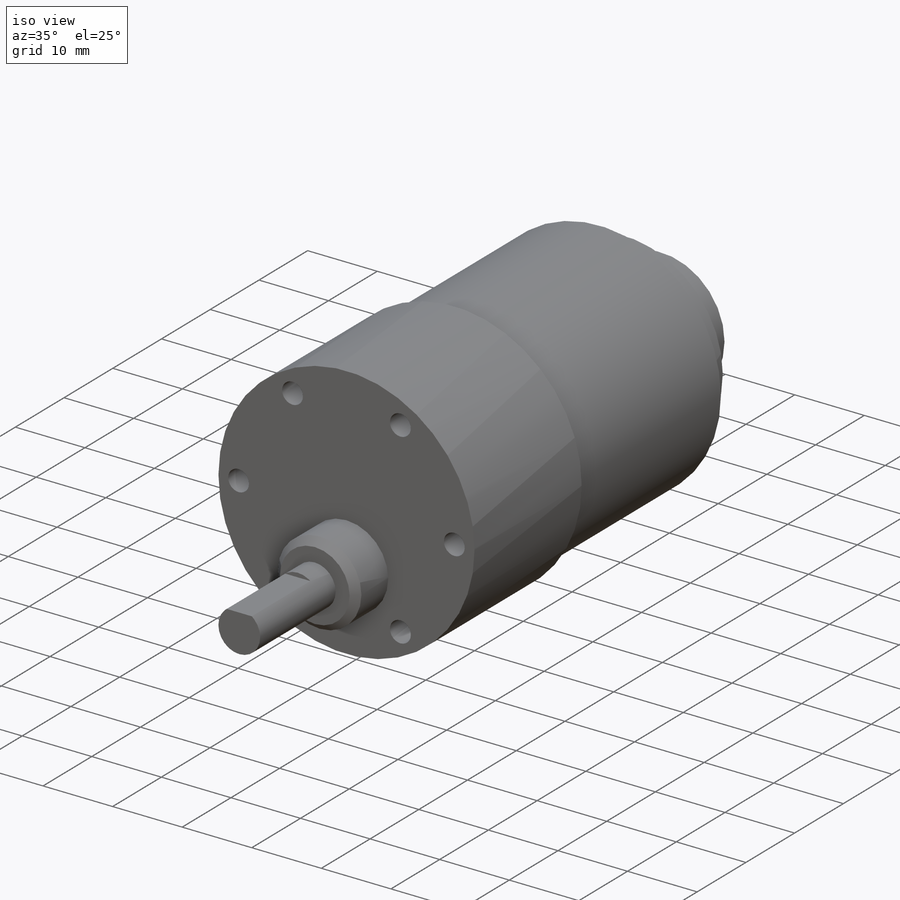
[diagram: iso view]
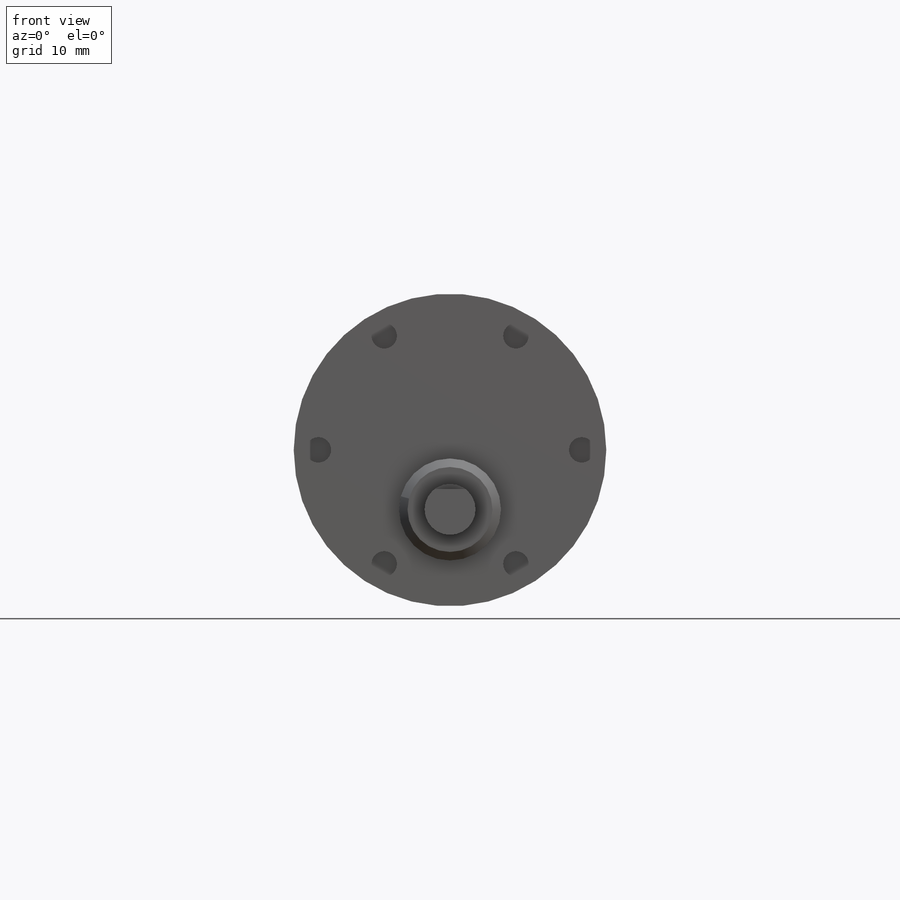
[diagram: front view]
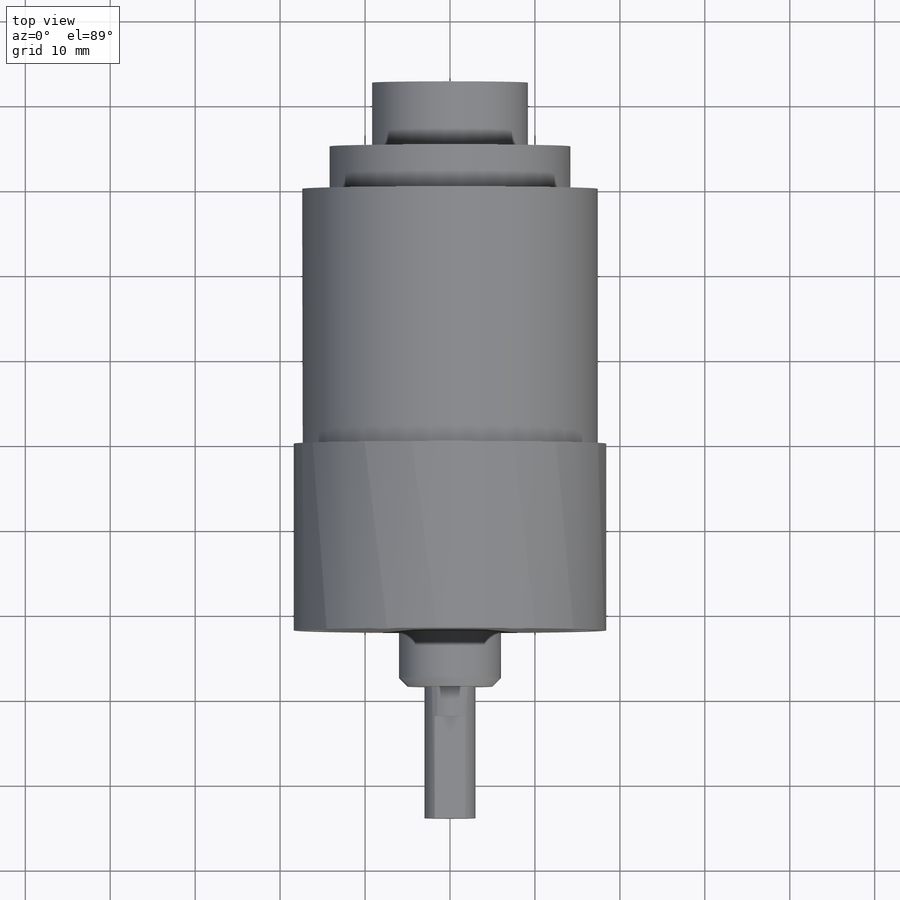
[diagram: top view]
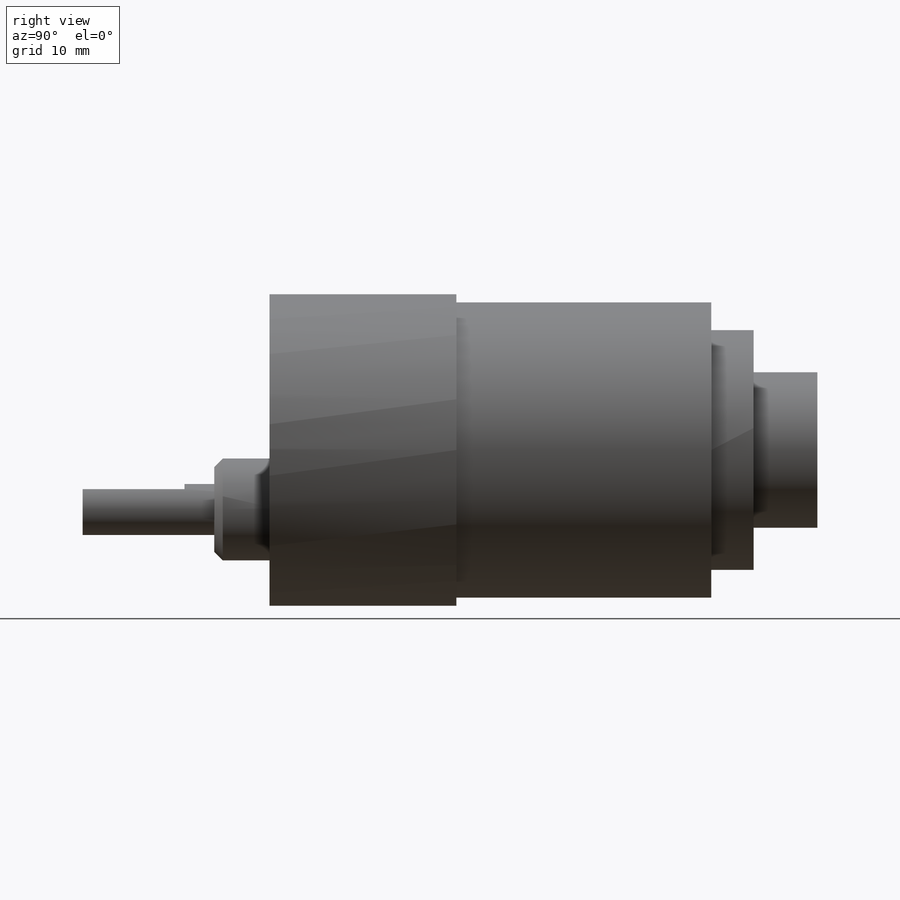
[diagram: right view]
SOLIDWORKS PART (.sldprt)
format: sldprt  version: not decoded by parser v0  size: 242,176 bytes
history: native  units: mm
features: sketch x8, extrude x6, cut_extrude x2, material x1, chamfer x1 (+12 scaffold rows collapsed)
feature tree (30):
  scaffold x12  (default folders/planes/origin — collapsed)
  material  "Material <not specified>"
  sketch  "Sketch1"  dims[D1=36.8mm]
  extrude  "Boss-Extrude1"  Depth=22mm
  sketch  "Sketch2"  dims[D1=1.0mm]
  extrude  "Boss-Extrude2"  Depth=30mm
  sketch  "Sketch3"  dims[D2=12.0mm D1=7.0mm]
  extrude  "Boss-Extrude3"  Depth=6.5mm
  chamfer  "Chamfer1"  Distance=1mm Angle=45deg
  sketch  "Sketch4"  dims[D1=6.0mm]
  extrude  "Boss-Extrude4"  Depth=15.5mm
  sketch  "Sketch5"  dims[D1=12.0mm D2=5.4mm]
  cut_extrude  "Cut-Extrude1"  Depth=15.5mm
  sketch  "Sketch6"  dims[D1=31.0mm D2=3.0mm D3=15.5mm]
  cut_extrude  "Cut-Extrude2"  Depth=5mm
  sketch  "Sketch7"
  extrude  "Boss-Extrude5"  Depth=12.5mm
  sketch  "Sketch8"  dims[D1=5.0mm]
  extrude  "Boss-Extrude6"  Depth=5mm
decode coverage: 16 of 17 modeling features carry decoded parameters
note: suppression state not decoded; provenance and decode notes live in map.json
